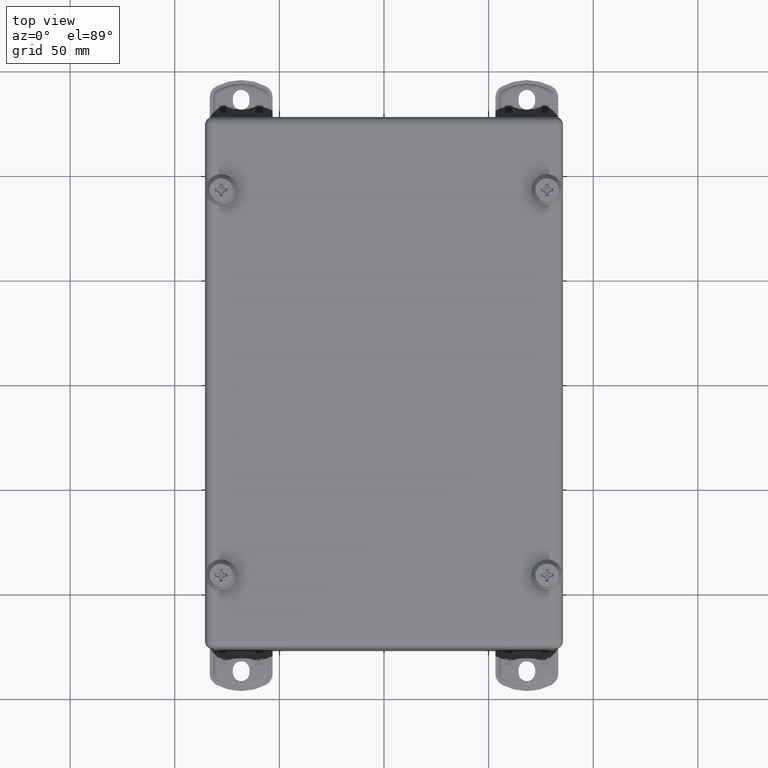
[diagram: clean part render]
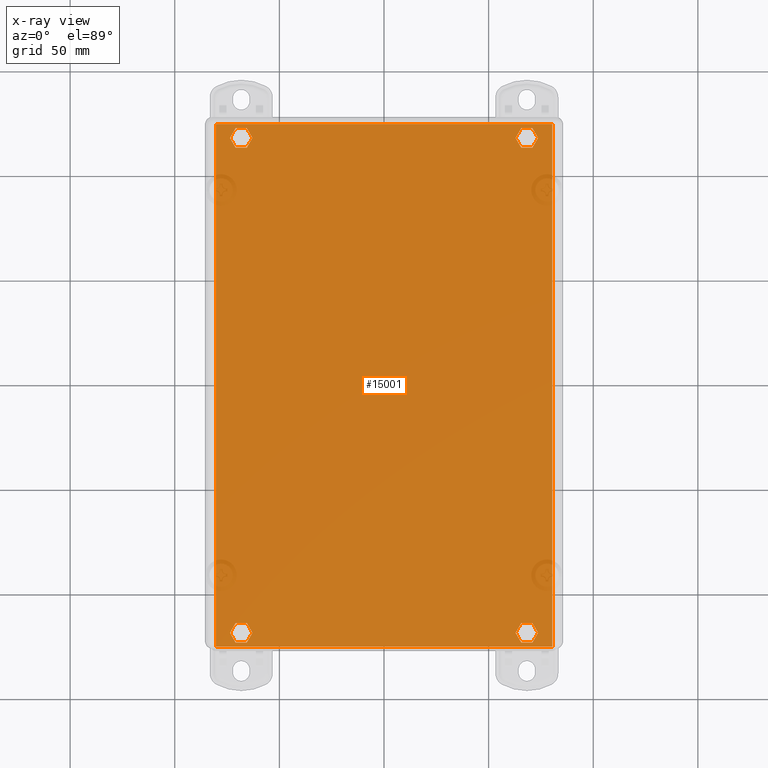
[diagram: x-ray — body ghosted, one internal face saturated and labeled with its STEP entity id]
A machine part, top view, then the same camera in x-ray: the body is ghosted and one INTERNAL B-rep face — a face not visible from any outside direction — is saturated and labeled: STEP entity #15001.
In plain terms, the highlighted planar face has unit normal (0, 0, 1).
Its self-contained STEP definition (entity closure, byte-faithful):
#398=FACE_BOUND('',#3336,.T.);
#399=FACE_BOUND('',#3337,.T.);
#400=FACE_BOUND('',#3338,.T.);
#401=FACE_BOUND('',#3339,.T.);
#2359=FACE_OUTER_BOUND('',#3335,.T.);
#3335=EDGE_LOOP('',(#10923,#10924,#10925,#10926));
#3336=EDGE_LOOP('',(#10927,#10928,#10929,#10930,#10931,#10932));
#3337=EDGE_LOOP('',(#10933,#10934,#10935,#10936,#10937,#10938));
#3338=EDGE_LOOP('',(#10939,#10940,#10941,#10942,#10943,#10944));
#3339=EDGE_LOOP('',(#10945,#10946,#10947,#10948,#10949,#10950));
#4154=LINE('',#22923,#5208);
#4158=LINE('',#22930,#5212);
#4161=LINE('',#22936,#5215);
#4164=LINE('',#22942,#5218);
#4166=LINE('',#22947,#5220);
#4169=LINE('',#22951,#5223);
#4172=LINE('',#22959,#5226);
#4176=LINE('',#22966,#5230);
#4179=LINE('',#22972,#5233);
#4182=LINE('',#22978,#5236);
#4184=LINE('',#22983,#5238);
#4187=LINE('',#22987,#5241);
#4190=LINE('',#22995,#5244);
#4194=LINE('',#23002,#5248);
#4197=LINE('',#23008,#5251);
#4200=LINE('',#23014,#5254);
#4202=LINE('',#23019,#5256);
#4205=LINE('',#23023,#5259);
#4208=LINE('',#23031,#5262);
#4212=LINE('',#23038,#5266);
#4215=LINE('',#23044,#5269);
#4218=LINE('',#23050,#5272);
#4220=LINE('',#23055,#5274);
#4223=LINE('',#23059,#5277);
#4523=LINE('',#24611,#5577);
#4524=LINE('',#24613,#5578);
#4525=LINE('',#24614,#5579);
#4526=LINE('',#24615,#5580);
#5208=VECTOR('',#18017,0.393700787401575);
#5212=VECTOR('',#18023,0.393700787401575);
#5215=VECTOR('',#18028,0.393700787401575);
#5218=VECTOR('',#18033,0.393700787401575);
#5220=VECTOR('',#18037,0.393700787401575);
#5223=VECTOR('',#18042,0.393700787401575);
#5226=VECTOR('',#18047,0.393700787401575);
#5230=VECTOR('',#18053,0.393700787401575);
#5233=VECTOR('',#18058,0.393700787401575);
#5236=VECTOR('',#18063,0.393700787401575);
#5238=VECTOR('',#18067,0.393700787401575);
#5241=VECTOR('',#18072,0.393700787401575);
#5244=VECTOR('',#18077,0.393700787401575);
#5248=VECTOR('',#18083,0.393700787401575);
#5251=VECTOR('',#18088,0.393700787401575);
#5254=VECTOR('',#18093,0.393700787401575);
#5256=VECTOR('',#18097,0.393700787401575);
#5259=VECTOR('',#18102,0.393700787401575);
#5262=VECTOR('',#18107,0.393700787401575);
#5266=VECTOR('',#18113,0.393700787401575);
#5269=VECTOR('',#18118,0.393700787401575);
#5272=VECTOR('',#18123,0.393700787401575);
#5274=VECTOR('',#18127,0.393700787401575);
#5277=VECTOR('',#18132,0.393700787401575);
#5577=VECTOR('',#19084,0.393700787401575);
#5578=VECTOR('',#19087,0.393700787401575);
#5579=VECTOR('',#19088,0.393700787401575);
#5580=VECTOR('',#19089,0.393700787401575);
#6262=VERTEX_POINT('',#22920);
#6263=VERTEX_POINT('',#22922);
#6265=VERTEX_POINT('',#22928);
#6267=VERTEX_POINT('',#22934);
#6269=VERTEX_POINT('',#22940);
#6271=VERTEX_POINT('',#22946);
#6274=VERTEX_POINT('',#22956);
#6275=VERTEX_POINT('',#22958);
#6277=VERTEX_POINT('',#22964);
#6279=VERTEX_POINT('',#22970);
#6281=VERTEX_POINT('',#22976);
#6283=VERTEX_POINT('',#22982);
#6286=VERTEX_POINT('',#22992);
#6287=VERTEX_POINT('',#22994);
#6289=VERTEX_POINT('',#23000);
#6291=VERTEX_POINT('',#23006);
#6293=VERTEX_POINT('',#23012);
#6295=VERTEX_POINT('',#23018);
#6298=VERTEX_POINT('',#23028);
#6299=VERTEX_POINT('',#23030);
#6301=VERTEX_POINT('',#23036);
#6303=VERTEX_POINT('',#23042);
#6305=VERTEX_POINT('',#23048);
#6307=VERTEX_POINT('',#23054);
#6430=VERTEX_POINT('',#23718);
#6432=VERTEX_POINT('',#23726);
#6435=VERTEX_POINT('',#23735);
#6437=VERTEX_POINT('',#23746);
#7632=EDGE_CURVE('',#6263,#6262,#4154,.T.);
#7636=EDGE_CURVE('',#6262,#6265,#4158,.T.);
#7639=EDGE_CURVE('',#6265,#6267,#4161,.T.);
#7642=EDGE_CURVE('',#6267,#6269,#4164,.T.);
#7644=EDGE_CURVE('',#6271,#6263,#4166,.T.);
#7647=EDGE_CURVE('',#6269,#6271,#4169,.T.);
#7650=EDGE_CURVE('',#6275,#6274,#4172,.T.);
#7654=EDGE_CURVE('',#6274,#6277,#4176,.T.);
#7657=EDGE_CURVE('',#6277,#6279,#4179,.T.);
#7660=EDGE_CURVE('',#6279,#6281,#4182,.T.);
#7662=EDGE_CURVE('',#6283,#6275,#4184,.T.);
#7665=EDGE_CURVE('',#6281,#6283,#4187,.T.);
#7668=EDGE_CURVE('',#6287,#6286,#4190,.T.);
#7672=EDGE_CURVE('',#6286,#6289,#4194,.T.);
#7675=EDGE_CURVE('',#6289,#6291,#4197,.T.);
#7678=EDGE_CURVE('',#6291,#6293,#4200,.T.);
#7680=EDGE_CURVE('',#6295,#6287,#4202,.T.);
#7683=EDGE_CURVE('',#6293,#6295,#4205,.T.);
#7686=EDGE_CURVE('',#6299,#6298,#4208,.T.);
#7690=EDGE_CURVE('',#6298,#6301,#4212,.T.);
#7693=EDGE_CURVE('',#6301,#6303,#4215,.T.);
#7696=EDGE_CURVE('',#6303,#6305,#4218,.T.);
#7698=EDGE_CURVE('',#6307,#6299,#4220,.T.);
#7701=EDGE_CURVE('',#6305,#6307,#4223,.T.);
#8207=EDGE_CURVE('',#6430,#6437,#4523,.T.);
#8208=EDGE_CURVE('',#6437,#6435,#4524,.T.);
#8209=EDGE_CURVE('',#6432,#6435,#4525,.T.);
#8210=EDGE_CURVE('',#6430,#6432,#4526,.T.);
#10923=ORIENTED_EDGE('',*,*,#8207,.T.);
#10924=ORIENTED_EDGE('',*,*,#8208,.T.);
#10925=ORIENTED_EDGE('',*,*,#8209,.F.);
#10926=ORIENTED_EDGE('',*,*,#8210,.F.);
#10927=ORIENTED_EDGE('',*,*,#7639,.T.);
#10928=ORIENTED_EDGE('',*,*,#7642,.T.);
#10929=ORIENTED_EDGE('',*,*,#7647,.T.);
#10930=ORIENTED_EDGE('',*,*,#7644,.T.);
#10931=ORIENTED_EDGE('',*,*,#7632,.T.);
#10932=ORIENTED_EDGE('',*,*,#7636,.T.);
#10933=ORIENTED_EDGE('',*,*,#7657,.T.);
#10934=ORIENTED_EDGE('',*,*,#7660,.T.);
#10935=ORIENTED_EDGE('',*,*,#7665,.T.);
#10936=ORIENTED_EDGE('',*,*,#7662,.T.);
#10937=ORIENTED_EDGE('',*,*,#7650,.T.);
#10938=ORIENTED_EDGE('',*,*,#7654,.T.);
#10939=ORIENTED_EDGE('',*,*,#7675,.T.);
#10940=ORIENTED_EDGE('',*,*,#7678,.T.);
#10941=ORIENTED_EDGE('',*,*,#7683,.T.);
#10942=ORIENTED_EDGE('',*,*,#7680,.T.);
#10943=ORIENTED_EDGE('',*,*,#7668,.T.);
#10944=ORIENTED_EDGE('',*,*,#7672,.T.);
#10945=ORIENTED_EDGE('',*,*,#7693,.T.);
#10946=ORIENTED_EDGE('',*,*,#7696,.T.);
#10947=ORIENTED_EDGE('',*,*,#7701,.T.);
#10948=ORIENTED_EDGE('',*,*,#7698,.T.);
#10949=ORIENTED_EDGE('',*,*,#7686,.T.);
#10950=ORIENTED_EDGE('',*,*,#7690,.T.);
#14600=PLANE('',#16434);
#15001=ADVANCED_FACE('',(#2359,#398,#399,#400,#401),#14600,.T.);
#16434=AXIS2_PLACEMENT_3D('',#24612,#19085,#19086);
#18017=DIRECTION('',(-1.,3.25429695590814E-16,0.));
#18023=DIRECTION('',(-0.5,0.866025403784439,0.));
#18028=DIRECTION('',(0.5,0.866025403784439,0.));
#18033=DIRECTION('',(1.,-1.52744235934653E-17,0.));
#18037=DIRECTION('',(-0.5,-0.866025403784439,0.));
#18042=DIRECTION('',(0.5,-0.866025403784439,0.));
#18047=DIRECTION('',(-1.,3.25429695590814E-16,0.));
#18053=DIRECTION('',(-0.5,0.866025403784439,0.));
#18058=DIRECTION('',(0.5,0.866025403784439,0.));
#18063=DIRECTION('',(1.,-1.52744235934653E-17,0.));
#18067=DIRECTION('',(-0.5,-0.866025403784439,0.));
#18072=DIRECTION('',(0.5,-0.866025403784439,0.));
#18077=DIRECTION('',(1.,1.18659514259248E-16,0.));
#18083=DIRECTION('',(0.5,-0.866025403784438,0.));
#18088=DIRECTION('',(-0.5,-0.866025403784439,0.));
#18093=DIRECTION('',(-1.,-4.28814786256597E-16,0.));
#18097=DIRECTION('',(0.5,0.866025403784439,0.));
#18102=DIRECTION('',(-0.5,0.866025403784438,0.));
#18107=DIRECTION('',(1.,1.18659514259248E-16,0.));
#18113=DIRECTION('',(0.5,-0.866025403784438,0.));
#18118=DIRECTION('',(-0.5,-0.866025403784439,0.));
#18123=DIRECTION('',(-1.,-4.28814786256597E-16,0.));
#18127=DIRECTION('',(0.5,0.866025403784439,0.));
#18132=DIRECTION('',(-0.5,0.866025403784438,0.));
#19084=DIRECTION('',(1.,0.,0.));
#19085=DIRECTION('center_axis',(0.,0.,1.));
#19086=DIRECTION('ref_axis',(1.,0.,0.));
#19087=DIRECTION('',(0.,1.,0.));
#19088=DIRECTION('',(1.,1.10578692301674E-31,0.));
#19089=DIRECTION('',(3.37065923797731E-48,1.,0.));
#22920=CARTESIAN_POINT('',(2.58130398615229,4.47292913385827,0.053));
#22922=CARTESIAN_POINT('',(2.79269601384771,4.47292913385827,0.053));
#22923=CARTESIAN_POINT('',(1.29065199307615,4.47292913385827,0.053));
#22928=CARTESIAN_POINT('',(2.47560797230459,4.656,0.053));
#22930=CARTESIAN_POINT('',(3.1742105457716,3.44598484845676,0.053));
#22934=CARTESIAN_POINT('',(2.58130398615229,4.83907086614173,0.053));
#22936=CARTESIAN_POINT('',(1.21095141268528,2.4655505846141,0.053));
#22940=CARTESIAN_POINT('',(2.79269601384771,4.83907086614173,0.053));
#22942=CARTESIAN_POINT('',(1.39634800692385,4.83907086614173,0.053));
#22946=CARTESIAN_POINT('',(2.89839202769541,4.656,0.053));
#22947=CARTESIAN_POINT('',(1.47519144730455,2.1909442854015,0.053));
#22951=CARTESIAN_POINT('',(3.54414659423857,3.53752028152763,0.053));
#22956=CARTESIAN_POINT('',(-2.79269601384771,4.47292913385827,0.053));
#22958=CARTESIAN_POINT('',(-2.58130398615229,4.47292913385827,0.053));
#22959=CARTESIAN_POINT('',(-1.39634800692385,4.47292913385827,0.053));
#22964=CARTESIAN_POINT('',(-2.89839202769541,4.656,0.053));
#22966=CARTESIAN_POINT('',(-1.5280394542284,2.28247971847237,0.053));
#22970=CARTESIAN_POINT('',(-2.79269601384771,4.83907086614173,0.053));
#22972=CARTESIAN_POINT('',(-3.49129858731472,3.6290557145985,0.053));
#22976=CARTESIAN_POINT('',(-2.58130398615229,4.83907086614173,0.053));
#22978=CARTESIAN_POINT('',(-1.29065199307615,4.83907086614173,0.053));
#22982=CARTESIAN_POINT('',(-2.47560797230459,4.656,0.053));
#22983=CARTESIAN_POINT('',(-3.22705855269545,3.3544494153859,0.053));
#22987=CARTESIAN_POINT('',(-1.15810340576143,2.37401515154324,0.053));
#22992=CARTESIAN_POINT('',(2.79269601384771,-4.47292913385827,0.053));
#22994=CARTESIAN_POINT('',(2.58130398615229,-4.47292913385827,0.053));
#22995=CARTESIAN_POINT('',(1.39634800692385,-4.47292913385827,0.053));
#23000=CARTESIAN_POINT('',(2.89839202769541,-4.656,0.053));
#23002=CARTESIAN_POINT('',(1.5280394542284,-2.28247971847237,0.053));
#23006=CARTESIAN_POINT('',(2.79269601384771,-4.83907086614173,0.053));
#23008=CARTESIAN_POINT('',(3.49129858731472,-3.62905571459849,0.053));
#23012=CARTESIAN_POINT('',(2.58130398615229,-4.83907086614173,0.053));
#23014=CARTESIAN_POINT('',(1.29065199307615,-4.83907086614173,0.053));
#23018=CARTESIAN_POINT('',(2.47560797230459,-4.656,0.053));
#23019=CARTESIAN_POINT('',(3.22705855269545,-3.3544494153859,0.053));
#23023=CARTESIAN_POINT('',(1.15810340576143,-2.37401515154324,0.053));
#23028=CARTESIAN_POINT('',(-2.58130398615229,-4.47292913385827,0.053));
#23030=CARTESIAN_POINT('',(-2.79269601384771,-4.47292913385827,0.053));
#23031=CARTESIAN_POINT('',(-1.29065199307615,-4.47292913385827,0.053));
#23036=CARTESIAN_POINT('',(-2.47560797230459,-4.656,0.053));
#23038=CARTESIAN_POINT('',(-3.1742105457716,-3.44598484845676,0.053));
#23042=CARTESIAN_POINT('',(-2.58130398615229,-4.83907086614173,0.053));
#23044=CARTESIAN_POINT('',(-1.21095141268528,-2.4655505846141,0.053));
#23048=CARTESIAN_POINT('',(-2.79269601384771,-4.83907086614173,0.053));
#23050=CARTESIAN_POINT('',(-1.39634800692385,-4.83907086614173,0.053));
#23054=CARTESIAN_POINT('',(-2.89839202769541,-4.656,0.053));
#23055=CARTESIAN_POINT('',(-1.47519144730455,-2.1909442854015,0.053));
#23059=CARTESIAN_POINT('',(-3.54414659423857,-3.53752028152763,0.053));
#23718=CARTESIAN_POINT('',(-3.166,-4.916,0.053));
#23726=CARTESIAN_POINT('',(-3.166,4.916,0.053));
#23735=CARTESIAN_POINT('',(3.166,4.916,0.053));
#23746=CARTESIAN_POINT('',(3.166,-4.916,0.053));
#24611=CARTESIAN_POINT('',(-1.625,-4.916,0.053));
#24612=CARTESIAN_POINT('Origin',(0.,0.,0.053));
#24613=CARTESIAN_POINT('',(3.166,-2.458,0.053));
#24614=CARTESIAN_POINT('',(-2.70088455946839E-31,4.916,0.053));
#24615=CARTESIAN_POINT('',(-3.166,5.28350835552943E-48,0.053));